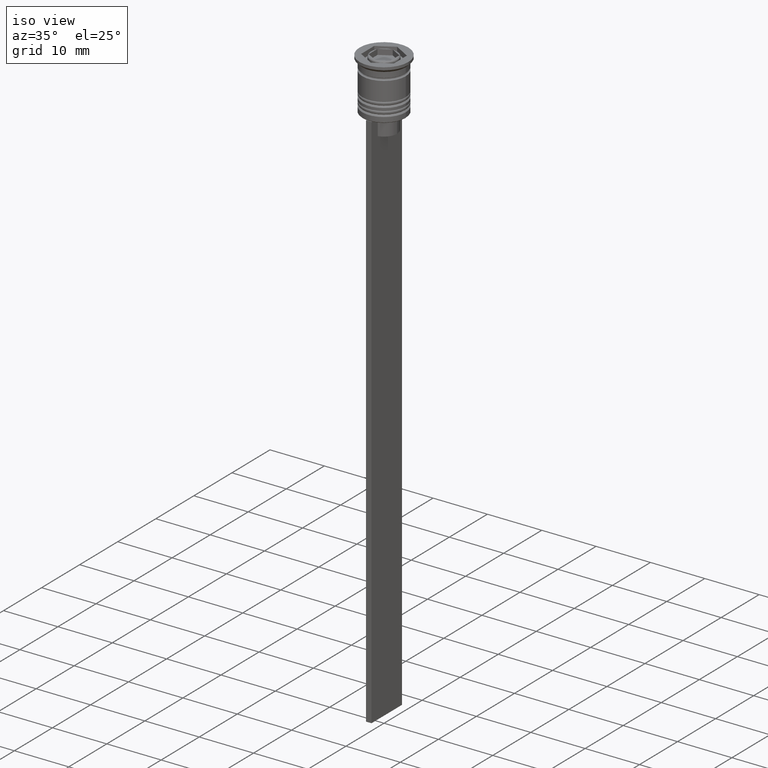
[diagram: clean part render]
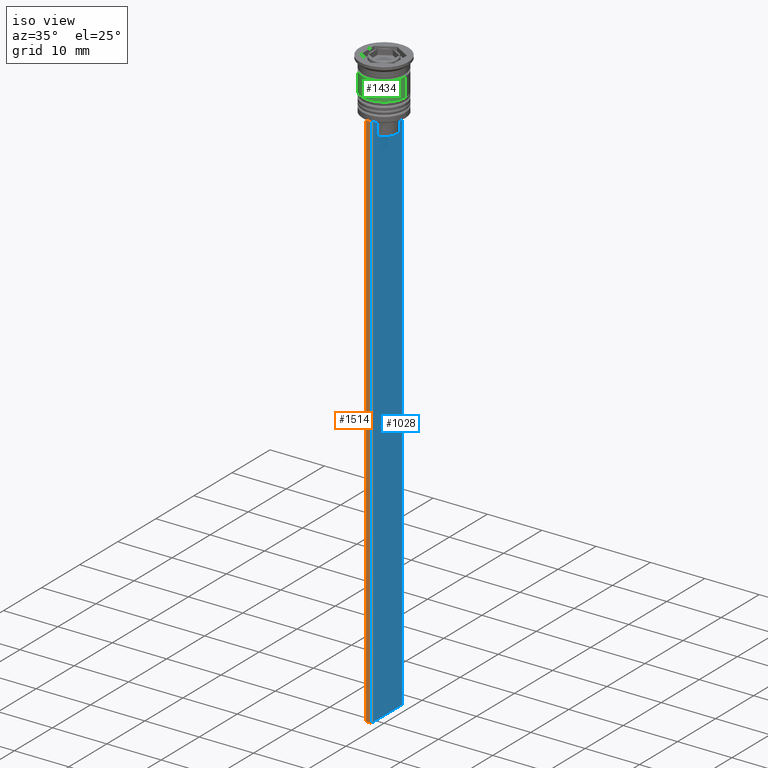
[diagram: same view with three faces highlighted in distinct colors, each labeled with its STEP entity id]
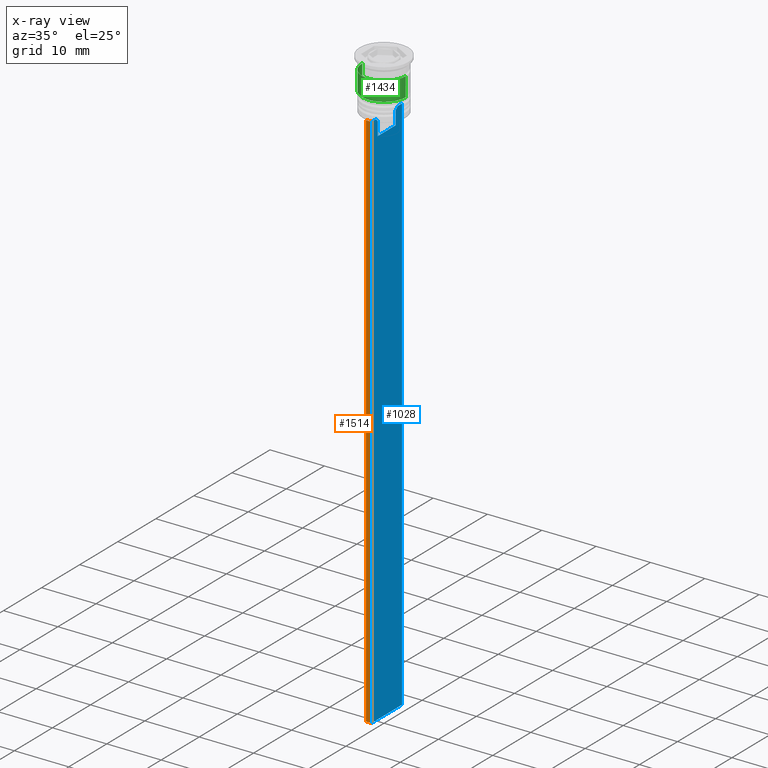
[diagram: x-ray of the same camera — body ghosted, the three highlighted faces saturated]
A machine part, iso view with three faces highlighted in distinct colors.
The next image is the same camera in x-ray (body ghosted, the three faces saturated) — at least one of them is partly hidden behind the body in this view.
Their STEP definitions:

[orange] entity #1514 — the highlighted planar face has unit normal (0, -1, -0).
#70 = EDGE_CURVE ( 'NONE', #1010, #1307, #1279, .T. ) ;
#180 = DIRECTION ( 'NONE',  ( 0.000000000000000000, 0.000000000000000000, -1.000000000000000000 ) ) ;
#239 = LINE ( 'NONE', #1168, #609 ) ;
#368 = EDGE_LOOP ( 'NONE', ( #1717, #1843, #620, #1131 ) ) ;
#609 = VECTOR ( 'NONE', #981, 1000.000000000000000 ) ;
#620 = ORIENTED_EDGE ( 'NONE', *, *, #1582, .F. ) ;
#814 = CARTESIAN_POINT ( 'NONE',  ( 0.5000000000000000000, -4.000000000000000000, -1.437742251701450202 ) ) ;
#824 = DIRECTION ( 'NONE',  ( 0.000000000000000000, 0.000000000000000000, -1.000000000000000000 ) ) ;
#967 = CARTESIAN_POINT ( 'NONE',  ( 0.5000000000000000000, -4.000000000000000000, -109.5000000000000000 ) ) ;
#971 = FACE_OUTER_BOUND ( 'NONE', #368, .T. ) ;
#981 = DIRECTION ( 'NONE',  ( -1.000000000000000000, 0.000000000000000000, 0.000000000000000000 ) ) ;
#1010 = VERTEX_POINT ( 'NONE', #1951 ) ;
#1015 = DIRECTION ( 'NONE',  ( 0.000000000000000000, 0.000000000000000000, -1.000000000000000000 ) ) ;
#1130 = CARTESIAN_POINT ( 'NONE',  ( -0.5000000000000000000, -4.000000000000000000, -1.437742251701450202 ) ) ;
#1131 = ORIENTED_EDGE ( 'NONE', *, *, #1802, .F. ) ;
#1168 = CARTESIAN_POINT ( 'NONE',  ( 0.5000000000000000000, -4.000000000000000000, -109.5000000000000000 ) ) ;
#1195 = VERTEX_POINT ( 'NONE', #967 ) ;
#1235 = VECTOR ( 'NONE', #1792, 1000.000000000000000 ) ;
#1279 = LINE ( 'NONE', #1130, #1683 ) ;
#1307 = VERTEX_POINT ( 'NONE', #1681 ) ;
#1320 = VERTEX_POINT ( 'NONE', #2191 ) ;
#1476 = VECTOR ( 'NONE', #1015, 1000.000000000000000 ) ;
#1514 = ADVANCED_FACE ( 'NONE', ( #971 ), #2147, .T. ) ;
#1582 = EDGE_CURVE ( 'NONE', #1195, #1307, #239, .T. ) ;
#1635 = LINE ( 'NONE', #2248, #1476 ) ;
#1681 = CARTESIAN_POINT ( 'NONE',  ( -0.5000000000000000000, -4.000000000000000000, -109.5000000000000000 ) ) ;
#1683 = VECTOR ( 'NONE', #180, 1000.000000000000000 ) ;
#1699 = AXIS2_PLACEMENT_3D ( 'NONE', #814, #1785, #824 ) ;
#1717 = ORIENTED_EDGE ( 'NONE', *, *, #2347, .F. ) ;
#1785 = DIRECTION ( 'NONE',  ( 0.000000000000000000, -1.000000000000000000, -0.000000000000000000 ) ) ;
#1792 = DIRECTION ( 'NONE',  ( 1.000000000000000000, 0.000000000000000000, 0.000000000000000000 ) ) ;
#1802 = EDGE_CURVE ( 'NONE', #1320, #1195, #1635, .T. ) ;
#1843 = ORIENTED_EDGE ( 'NONE', *, *, #70, .T. ) ;
#1938 = LINE ( 'NONE', #2356, #1235 ) ;
#1951 = CARTESIAN_POINT ( 'NONE',  ( -0.5000000000000000000, -4.000000000000000000, -9.500000000000000000 ) ) ;
#2147 = PLANE ( 'NONE',  #1699 ) ;
#2191 = CARTESIAN_POINT ( 'NONE',  ( 0.5000000000000000000, -4.000000000000000000, -9.500000000000000000 ) ) ;
#2248 = CARTESIAN_POINT ( 'NONE',  ( 0.5000000000000000000, -4.000000000000000000, -1.437742251701450202 ) ) ;
#2347 = EDGE_CURVE ( 'NONE', #1010, #1320, #1938, .T. ) ;
#2356 = CARTESIAN_POINT ( 'NONE',  ( 0.5000000000000000000, -4.000000000000000000, -9.500000000000000000 ) ) ;

[blue] entity #1028 — the highlighted planar face has unit normal (-1, 0, 0).
#35 = FACE_OUTER_BOUND ( 'NONE', #519, .T. ) ;
#64 = CARTESIAN_POINT ( 'NONE',  ( 0.5000000000000000000, -2.856571371417138572, -9.500000000000000000 ) ) ;
#118 = CARTESIAN_POINT ( 'NONE',  ( 0.5000000000000000000, -4.000000000000000000, -109.5000000000000000 ) ) ;
#163 = AXIS2_PLACEMENT_3D ( 'NONE', #1586, #587, #793 ) ;
#174 = LINE ( 'NONE', #937, #1391 ) ;
#195 = ORIENTED_EDGE ( 'NONE', *, *, #1623, .T. ) ;
#245 = LINE ( 'NONE', #2402, #1985 ) ;
#247 = ORIENTED_EDGE ( 'NONE', *, *, #2098, .T. ) ;
#260 = CARTESIAN_POINT ( 'NONE',  ( 0.5000000000000000000, 2.347338918861097135, -10.00000000000000000 ) ) ;
#294 = CARTESIAN_POINT ( 'NONE',  ( 0.5000000000000000000, 2.347338918861097135, 0.000000000000000000 ) ) ;
#332 = ORIENTED_EDGE ( 'NONE', *, *, #517, .T. ) ;
#347 = CARTESIAN_POINT ( 'NONE',  ( 0.5000000000000000000, -4.000000000000000000, -9.500000000000000000 ) ) ;
#404 = VECTOR ( 'NONE', #870, 1000.000000000000000 ) ;
#442 = EDGE_CURVE ( 'NONE', #745, #1871, #174, .T. ) ;
#450 = CARTESIAN_POINT ( 'NONE',  ( 0.5000000000000000000, -2.347338918861097135, -10.00000000000000000 ) ) ;
#470 = LINE ( 'NONE', #294, #921 ) ;
#493 = CARTESIAN_POINT ( 'NONE',  ( 0.5000000000000000000, -4.000000000000000000, -9.500000000000000000 ) ) ;
#517 = EDGE_CURVE ( 'NONE', #740, #765, #1516, .T. ) ;
#519 = EDGE_LOOP ( 'NONE', ( #1432, #2270, #247, #2259, #993, #332, #582, #195, #1339, #717, #908, #1518 ) ) ;
#580 = CARTESIAN_POINT ( 'NONE',  ( 0.5000000000000000000, 2.687094542495898075, -9.666938847453439010 ) ) ;
#582 = ORIENTED_EDGE ( 'NONE', *, *, #858, .T. ) ;
#587 = DIRECTION ( 'NONE',  ( -1.000000000000000000, 0.000000000000000000, 0.000000000000000000 ) ) ;
#589 = CARTESIAN_POINT ( 'NONE',  ( 0.5000000000000000000, -3.867815921162741422, -9.500000000000000000 ) ) ;
#612 = CARTESIAN_POINT ( 'NONE',  ( 0.5000000000000000000, -2.347338918861097135, -12.50000000000000000 ) ) ;
#688 = VERTEX_POINT ( 'NONE', #2360 ) ;
#717 = ORIENTED_EDGE ( 'NONE', *, *, #819, .T. ) ;
#726 = CARTESIAN_POINT ( 'NONE',  ( 0.5000000000000000000, 2.856571371417138572, -9.500000000000000000 ) ) ;
#731 = DIRECTION ( 'NONE',  ( 0.000000000000000000, -1.000000000000000000, 0.000000000000000000 ) ) ;
#740 = VERTEX_POINT ( 'NONE', #2388 ) ;
#745 = VERTEX_POINT ( 'NONE', #1995 ) ;
#765 = VERTEX_POINT ( 'NONE', #64 ) ;
#766 = VECTOR ( 'NONE', #731, 1000.000000000000000 ) ;
#793 = DIRECTION ( 'NONE',  ( 0.000000000000000000, 0.000000000000000000, 1.000000000000000000 ) ) ;
#819 = EDGE_CURVE ( 'NONE', #1195, #688, #1223, .T. ) ;
#858 = EDGE_CURVE ( 'NONE', #765, #1554, #1825, .T. ) ;
#861 = DIRECTION ( 'NONE',  ( 0.000000000000000000, -1.000000000000000000, 0.000000000000000000 ) ) ;
#870 = DIRECTION ( 'NONE',  ( 0.000000000000000000, 0.000000000000000000, -1.000000000000000000 ) ) ;
#873 = VERTEX_POINT ( 'NONE', #2214 ) ;
#908 = ORIENTED_EDGE ( 'NONE', *, *, #1957, .F. ) ;
#921 = VECTOR ( 'NONE', #1656, 1000.000000000000000 ) ;
#929 = CARTESIAN_POINT ( 'NONE',  ( 0.5000000000000000000, 3.867815921162741422, -9.500000000000000000 ) ) ;
#937 = CARTESIAN_POINT ( 'NONE',  ( 0.5000000000000000000, 2.399999999999996803, -12.50000000000000000 ) ) ;
#967 = CARTESIAN_POINT ( 'NONE',  ( 0.5000000000000000000, -4.000000000000000000, -109.5000000000000000 ) ) ;
#993 = ORIENTED_EDGE ( 'NONE', *, *, #1402, .T. ) ;
#994 = LINE ( 'NONE', #1227, #404 ) ;
#1015 = DIRECTION ( 'NONE',  ( 0.000000000000000000, 0.000000000000000000, -1.000000000000000000 ) ) ;
#1028 = ADVANCED_FACE ( 'NONE', ( #35 ), #1184, .F. ) ;
#1121 = CARTESIAN_POINT ( 'NONE',  ( 0.5000000000000000000, 2.517407211010872281, -9.833663366238582171 ) ) ;
#1184 = PLANE ( 'NONE',  #163 ) ;
#1195 = VERTEX_POINT ( 'NONE', #967 ) ;
#1215 = VERTEX_POINT ( 'NONE', #260 ) ;
#1223 = LINE ( 'NONE', #118, #1567 ) ;
#1224 = CARTESIAN_POINT ( 'NONE',  ( 0.5000000000000000000, -4.000000000000000000, -9.500000000000000000 ) ) ;
#1227 = CARTESIAN_POINT ( 'NONE',  ( 0.5000000000000000000, 4.000000000000000000, -1.437742251701450202 ) ) ;
#1241 = CARTESIAN_POINT ( 'NONE',  ( 0.5000000000000000000, -4.000000000000000000, -9.500000000000000000 ) ) ;
#1252 = DIRECTION ( 'NONE',  ( 0.000000000000000000, 1.000000000000000000, 0.000000000000000000 ) ) ;
#1289 = B_SPLINE_CURVE_WITH_KNOTS ( 'NONE', 3,
 ( #726, #580, #1121, #2344 ),
 .UNSPECIFIED., .F., .F.,
 ( 4, 4 ),
 ( 0.004956812174141191595, 0.005670477137898149653 ),
 .UNSPECIFIED. ) ;
#1320 = VERTEX_POINT ( 'NONE', #2191 ) ;
#1339 = ORIENTED_EDGE ( 'NONE', *, *, #1802, .T. ) ;
#1379 = VERTEX_POINT ( 'NONE', #929 ) ;
#1391 = VECTOR ( 'NONE', #1713, 1000.000000000000000 ) ;
#1402 = EDGE_CURVE ( 'NONE', #1871, #740, #245, .T. ) ;
#1419 = DIRECTION ( 'NONE',  ( 0.000000000000000000, -1.000000000000000000, 0.000000000000000000 ) ) ;
#1432 = ORIENTED_EDGE ( 'NONE', *, *, #1759, .T. ) ;
#1442 = VECTOR ( 'NONE', #861, 1000.000000000000000 ) ;
#1476 = VECTOR ( 'NONE', #1015, 1000.000000000000000 ) ;
#1516 = B_SPLINE_CURVE_WITH_KNOTS ( 'NONE', 3,
 ( #450, #1572, #2380, #2172 ),
 .UNSPECIFIED., .F., .F.,
 ( 4, 4 ),
 ( 0.01178336557230038467, 0.01249758354768160280 ),
 .UNSPECIFIED. ) ;
#1518 = ORIENTED_EDGE ( 'NONE', *, *, #2509, .T. ) ;
#1554 = VERTEX_POINT ( 'NONE', #589 ) ;
#1567 = VECTOR ( 'NONE', #1252, 1000.000000000000000 ) ;
#1572 = CARTESIAN_POINT ( 'NONE',  ( 0.5000000000000000000, -2.517408374291112416, -9.833662228483172285 ) ) ;
#1586 = CARTESIAN_POINT ( 'NONE',  ( 0.5000000000000000000, -4.000000000000000000, -1.437742251701450202 ) ) ;
#1622 = LINE ( 'NONE', #1224, #2495 ) ;
#1623 = EDGE_CURVE ( 'NONE', #1554, #1320, #2015, .T. ) ;
#1635 = LINE ( 'NONE', #2248, #1476 ) ;
#1656 = DIRECTION ( 'NONE',  ( 0.000000000000000000, 0.000000000000000000, -1.000000000000000000 ) ) ;
#1700 = EDGE_CURVE ( 'NONE', #873, #1215, #1289, .T. ) ;
#1713 = DIRECTION ( 'NONE',  ( 0.000000000000000000, -1.000000000000000000, 0.000000000000000000 ) ) ;
#1759 = EDGE_CURVE ( 'NONE', #1379, #873, #1622, .T. ) ;
#1766 = VERTEX_POINT ( 'NONE', #2367 ) ;
#1802 = EDGE_CURVE ( 'NONE', #1320, #1195, #1635, .T. ) ;
#1812 = VECTOR ( 'NONE', #1419, 1000.000000000000000 ) ;
#1825 = LINE ( 'NONE', #1241, #1442 ) ;
#1871 = VERTEX_POINT ( 'NONE', #612 ) ;
#1957 = EDGE_CURVE ( 'NONE', #1766, #688, #994, .T. ) ;
#1965 = DIRECTION ( 'NONE',  ( -0.000000000000000000, -0.000000000000000000, 1.000000000000000000 ) ) ;
#1985 = VECTOR ( 'NONE', #1965, 1000.000000000000000 ) ;
#1995 = CARTESIAN_POINT ( 'NONE',  ( 0.5000000000000000000, 2.347338918861097135, -12.50000000000000000 ) ) ;
#2015 = LINE ( 'NONE', #493, #1812 ) ;
#2017 = DIRECTION ( 'NONE',  ( 0.000000000000000000, -1.000000000000000000, 0.000000000000000000 ) ) ;
#2098 = EDGE_CURVE ( 'NONE', #1215, #745, #470, .T. ) ;
#2172 = CARTESIAN_POINT ( 'NONE',  ( 0.5000000000000000000, -2.856571371417138572, -9.500000000000000000 ) ) ;
#2191 = CARTESIAN_POINT ( 'NONE',  ( 0.5000000000000000000, -4.000000000000000000, -9.500000000000000000 ) ) ;
#2214 = CARTESIAN_POINT ( 'NONE',  ( 0.5000000000000000000, 2.856571371417138572, -9.500000000000000000 ) ) ;
#2248 = CARTESIAN_POINT ( 'NONE',  ( 0.5000000000000000000, -4.000000000000000000, -1.437742251701450202 ) ) ;
#2259 = ORIENTED_EDGE ( 'NONE', *, *, #442, .T. ) ;
#2270 = ORIENTED_EDGE ( 'NONE', *, *, #1700, .T. ) ;
#2287 = LINE ( 'NONE', #347, #766 ) ;
#2344 = CARTESIAN_POINT ( 'NONE',  ( 0.5000000000000000000, 2.347338918861097135, -10.00000000000000000 ) ) ;
#2360 = CARTESIAN_POINT ( 'NONE',  ( 0.5000000000000000000, 4.000000000000000000, -109.5000000000000000 ) ) ;
#2367 = CARTESIAN_POINT ( 'NONE',  ( 0.5000000000000000000, 4.000000000000000000, -9.500000000000000000 ) ) ;
#2380 = CARTESIAN_POINT ( 'NONE',  ( 0.5000000000000000000, -2.687095498514037839, -9.666937905752043037 ) ) ;
#2388 = CARTESIAN_POINT ( 'NONE',  ( 0.5000000000000000000, -2.347338918861097135, -10.00000000000000000 ) ) ;
#2402 = CARTESIAN_POINT ( 'NONE',  ( 0.5000000000000000000, -2.347338918861097135, 0.000000000000000000 ) ) ;
#2495 = VECTOR ( 'NONE', #2017, 1000.000000000000000 ) ;
#2509 = EDGE_CURVE ( 'NONE', #1766, #1379, #2287, .T. ) ;

[green] entity #1434 — the highlighted cylindrical surface (edge-blend (fillet) strip) has radius 4 mm, axis along (-0, -0, 1).
#18 = CARTESIAN_POINT ( 'NONE',  ( 0.000000000000000000, 0.000000000000000000, 0.000000000000000000 ) ) ;
#33 = CARTESIAN_POINT ( 'NONE',  ( -4.000000000000000000, 4.898587196589412829E-16, -2.500000000000000000 ) ) ;
#39 = ORIENTED_EDGE ( 'NONE', *, *, #1676, .T. ) ;
#86 = DIRECTION ( 'NONE',  ( 1.000000000000000000, 0.000000000000000000, 0.000000000000000000 ) ) ;
#268 = VERTEX_POINT ( 'NONE', #33 ) ;
#278 = EDGE_LOOP ( 'NONE', ( #664, #39, #1188, #2311 ) ) ;
#329 = DIRECTION ( 'NONE',  ( -0.000000000000000000, -0.000000000000000000, 1.000000000000000000 ) ) ;
#454 = VERTEX_POINT ( 'NONE', #1533 ) ;
#540 = CARTESIAN_POINT ( 'NONE',  ( -4.000000000000000000, 4.898587196589412829E-16, 0.000000000000000000 ) ) ;
#664 = ORIENTED_EDGE ( 'NONE', *, *, #1439, .F. ) ;
#722 = CIRCLE ( 'NONE', #1035, 4.000000000000000000 ) ;
#841 = VECTOR ( 'NONE', #1408, 1000.000000000000000 ) ;
#871 = EDGE_CURVE ( 'NONE', #1178, #1389, #1640, .T. ) ;
#899 = DIRECTION ( 'NONE',  ( -0.000000000000000000, -0.000000000000000000, 1.000000000000000000 ) ) ;
#904 = DIRECTION ( 'NONE',  ( 1.000000000000000000, 0.000000000000000000, 0.000000000000000000 ) ) ;
#949 = FACE_OUTER_BOUND ( 'NONE', #278, .T. ) ;
#1035 = AXIS2_PLACEMENT_3D ( 'NONE', #2078, #899, #86 ) ;
#1157 = DIRECTION ( 'NONE',  ( 1.000000000000000000, 0.000000000000000000, 0.000000000000000000 ) ) ;
#1162 = AXIS2_PLACEMENT_3D ( 'NONE', #18, #1297, #1157 ) ;
#1178 = VERTEX_POINT ( 'NONE', #2175 ) ;
#1188 = ORIENTED_EDGE ( 'NONE', *, *, #871, .T. ) ;
#1276 = CARTESIAN_POINT ( 'NONE',  ( 0.000000000000000000, 0.000000000000000000, -6.000000000000000000 ) ) ;
#1281 = VECTOR ( 'NONE', #1722, 1000.000000000000000 ) ;
#1297 = DIRECTION ( 'NONE',  ( -0.000000000000000000, -0.000000000000000000, 1.000000000000000000 ) ) ;
#1354 = CIRCLE ( 'NONE', #1687, 4.000000000000000888 ) ;
#1389 = VERTEX_POINT ( 'NONE', #1895 ) ;
#1408 = DIRECTION ( 'NONE',  ( -0.000000000000000000, -0.000000000000000000, 1.000000000000000000 ) ) ;
#1434 = ADVANCED_FACE ( 'NONE', ( #949 ), #2309, .T. ) ;
#1439 = EDGE_CURVE ( 'NONE', #454, #268, #2301, .T. ) ;
#1455 = CARTESIAN_POINT ( 'NONE',  ( 4.000000000000000000, 0.000000000000000000, 0.000000000000000000 ) ) ;
#1533 = CARTESIAN_POINT ( 'NONE',  ( -4.000000000000000888, 4.898587196589413815E-16, -6.000000000000000000 ) ) ;
#1640 = LINE ( 'NONE', #1455, #841 ) ;
#1676 = EDGE_CURVE ( 'NONE', #454, #1178, #1354, .T. ) ;
#1687 = AXIS2_PLACEMENT_3D ( 'NONE', #1276, #329, #904 ) ;
#1722 = DIRECTION ( 'NONE',  ( -0.000000000000000000, -0.000000000000000000, 1.000000000000000000 ) ) ;
#1895 = CARTESIAN_POINT ( 'NONE',  ( 4.000000000000000000, 0.000000000000000000, -2.500000000000000000 ) ) ;
#2078 = CARTESIAN_POINT ( 'NONE',  ( 0.000000000000000000, 0.000000000000000000, -2.500000000000000000 ) ) ;
#2175 = CARTESIAN_POINT ( 'NONE',  ( 4.000000000000000888, 0.000000000000000000, -6.000000000000000000 ) ) ;
#2301 = LINE ( 'NONE', #540, #1281 ) ;
#2309 = CYLINDRICAL_SURFACE ( 'NONE', #1162, 4.000000000000000000 ) ;
#2311 = ORIENTED_EDGE ( 'NONE', *, *, #2466, .F. ) ;
#2466 = EDGE_CURVE ( 'NONE', #268, #1389, #722, .T. ) ;